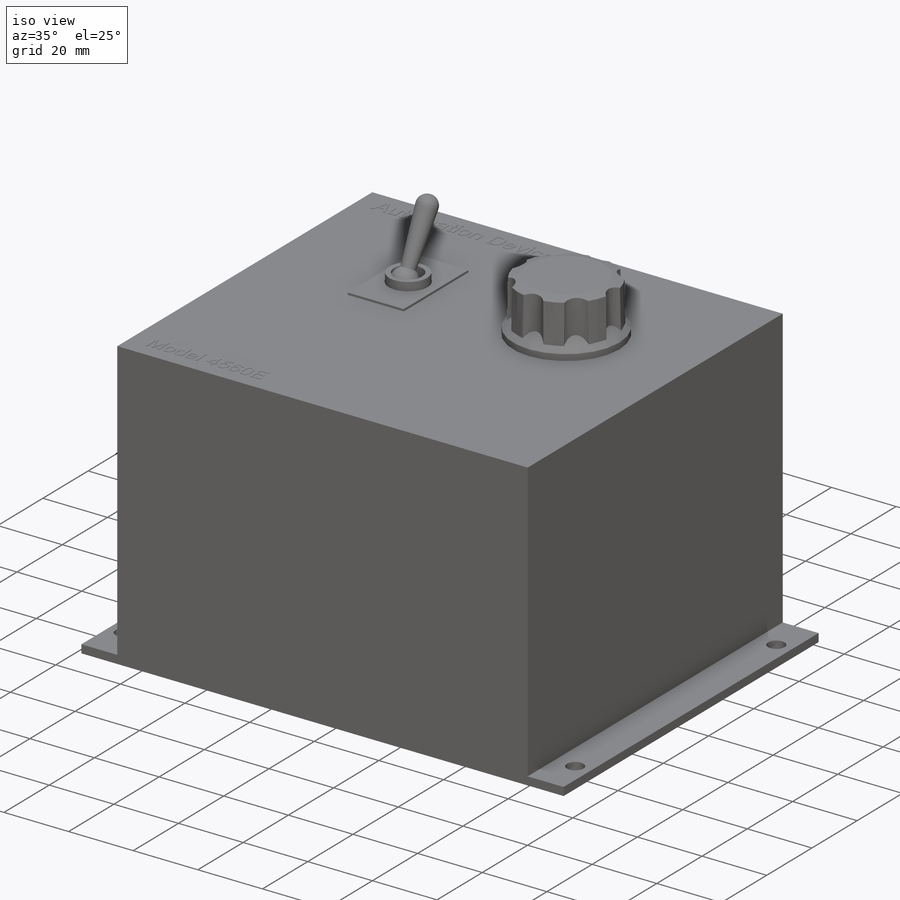
[diagram: iso view]
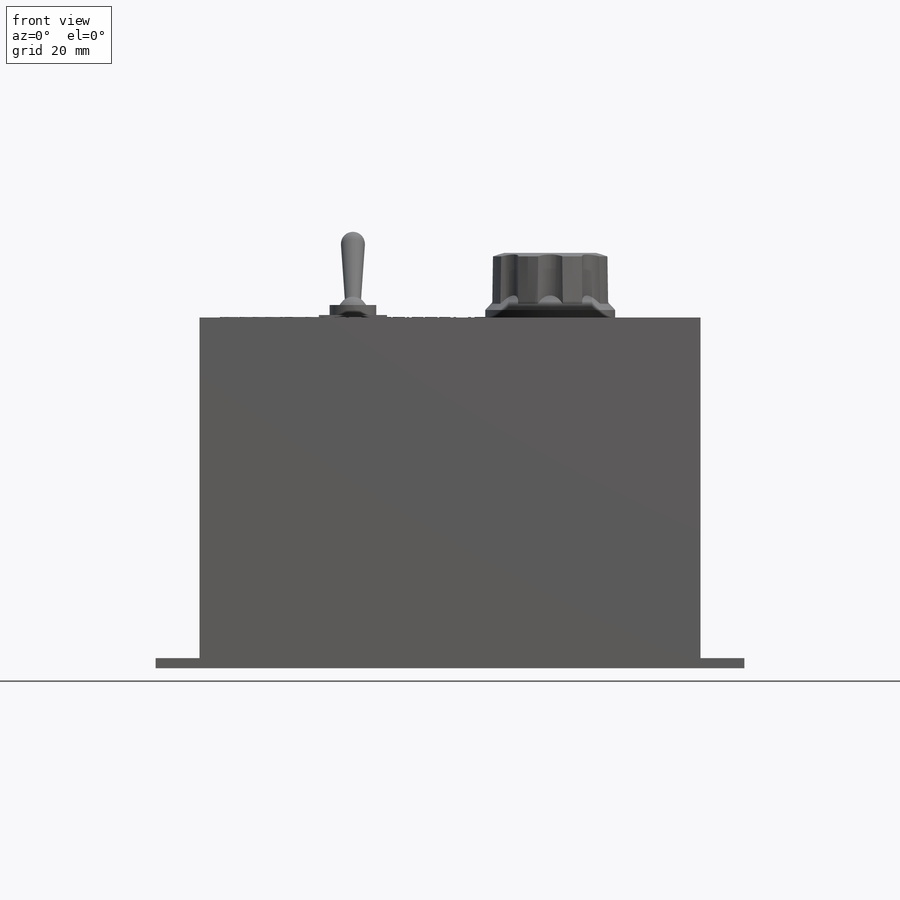
[diagram: front view]
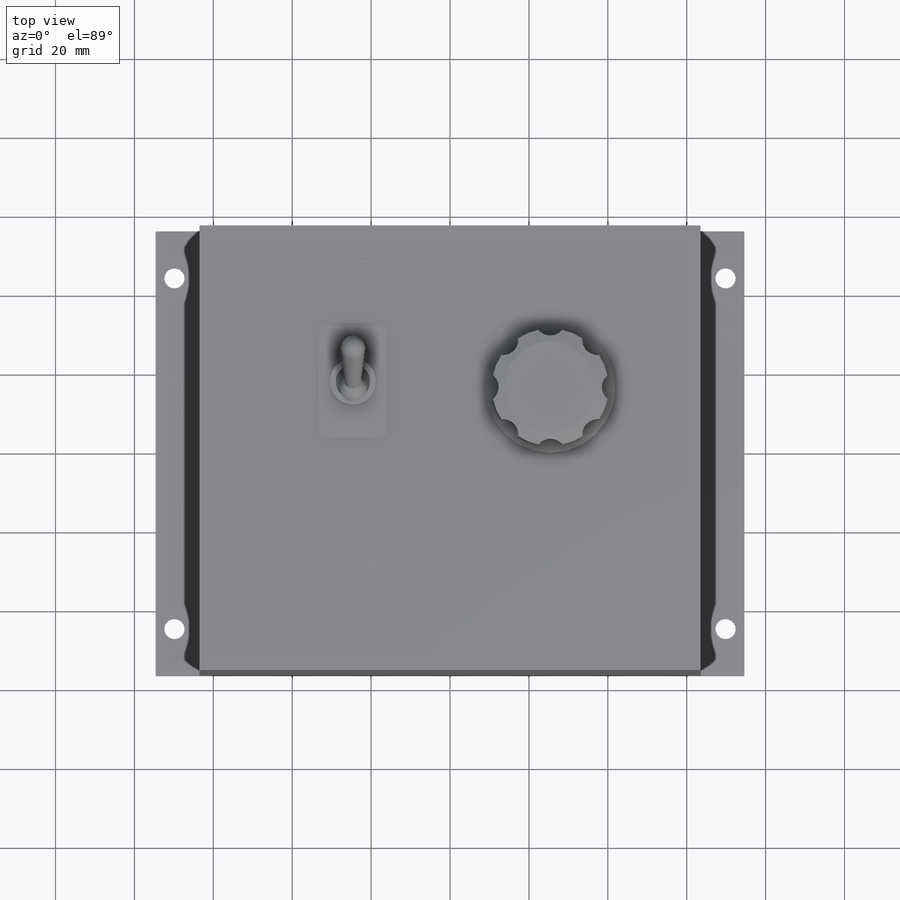
[diagram: top view]
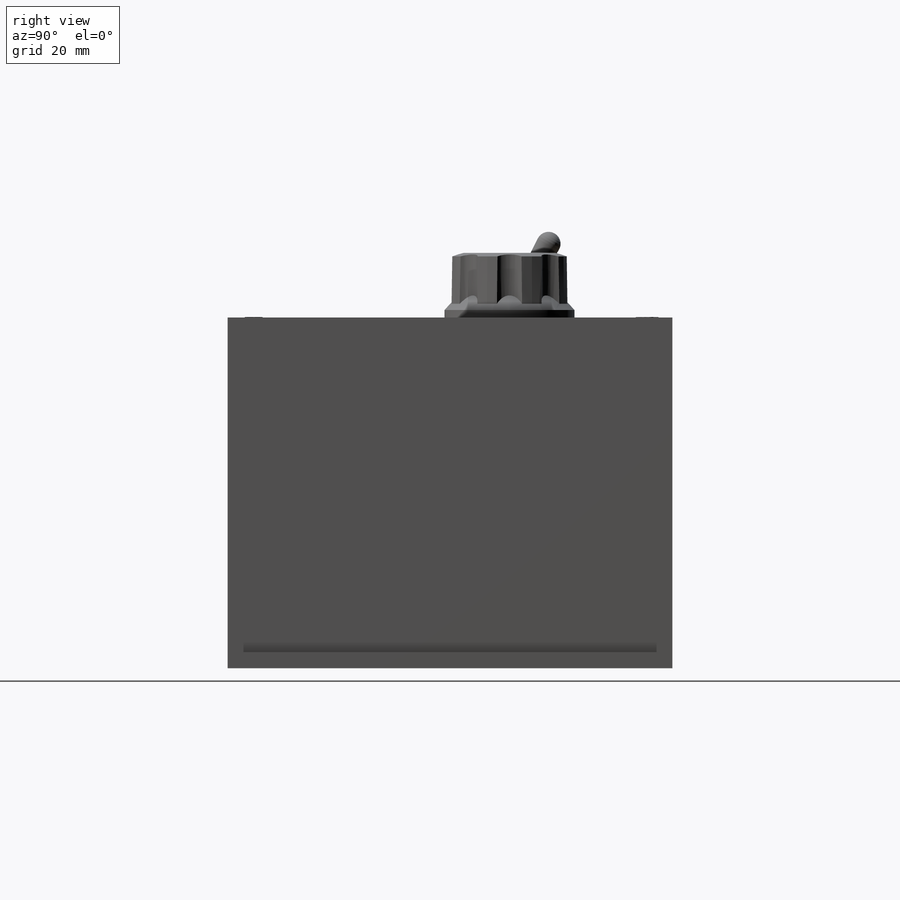
[diagram: right view]
SOLIDWORKS PART (.sldprt)
format: sldprt  version: not decoded by parser v0  size: 1,086,464 bytes
history: native  units: mm
features: sketch x8, extrude x3, revolve x3, cut_extrude x2, plane x2, material x1 (+12 scaffold rows collapsed)
feature tree (31):
  scaffold x12  (default folders/planes/origin — collapsed)
  material  "Material <not specified>"
  sketch  "Sketch1"  dims[c1.D1=2.54mm c1.D2=11.1125mm c1.D3=149.225mm c1.D4=127.0mm c2.D2=127.0mm c2.D4=88.9mm]
  extrude  "Extrude1"  Depth=112.7125mm
  sketch  "Sketch2"  dims[c1.D1=5.1054mm c1.D2=5.1054mm c1.D3=5.1054mm c2.D2=88.9mm c2.D3=139.7mm c2.D4=69.85mm c2.D5=44.45mm]
  cut_extrude  "Cut-Extrude1"  [1 undecoded]
  sketch  "Sketch3"
  extrude  "Extrude2"  Depth=0.127mm
  plane  "Plane1"  Offset=25.4mm
  sketch  "Sketch4"  dims[c1.D1=~39.906392mm c1.D3=90.0deg c2.D1=41.275mm c2.D2=1.905mm c2.D3=0.889mm c2.D4=12.9032mm c2.D5=16.383mm c2.D6=23.241mm c2.D7=29.6418mm c2.D8=29.6418mm c3.D7=29.6418mm c3.D8=30.0482mm c3.D9=32.9438mm]
  revolve  "Revolve1"  Angle=360deg
  sketch  "Sketch5"  dims[c1.D1=7.9375mm c1.D2=7.9375mm c1.D3=7.9375mm c2.D2=13.081mm c2.D3=13.081mm]
  cut_extrude  "Cut-Extrude2"  [1 undecoded]
  sketch  "Sketch6"  dims[param=0.0mm D5=12.065mm D1=38.8874mm D2=1.5748mm D3=17.272mm D4=28.575mm]
  extrude  "Extrude3"  Depth=0.635mm
  plane  "Plane2"  Offset=24.6126mm
  sketch  "Sketch7"  dims[D1=8.763mm D2=11.811mm D3=3.175mm]
  revolve  "Revolve2"  Angle=360deg
  sketch  "Sketch8"  dims[c1.D2=3.81mm c1.D5=~2.164905mm c1.D6=6.096mm c1.D1=~5.666915mm c2.D1=30.0deg c2.D3=4.064mm c2.D4=6.985mm c2.D5=16.6624mm c2.D7=13.8176mm]
  revolve  "Revolve3"  Angle=360deg
decode coverage: 13 of 16 modeling features carry decoded parameters
note: ~ marks probable driven/reference dimensions
note: 2 parameter values undecoded
note: suppression state not decoded; provenance and decode notes live in map.json
